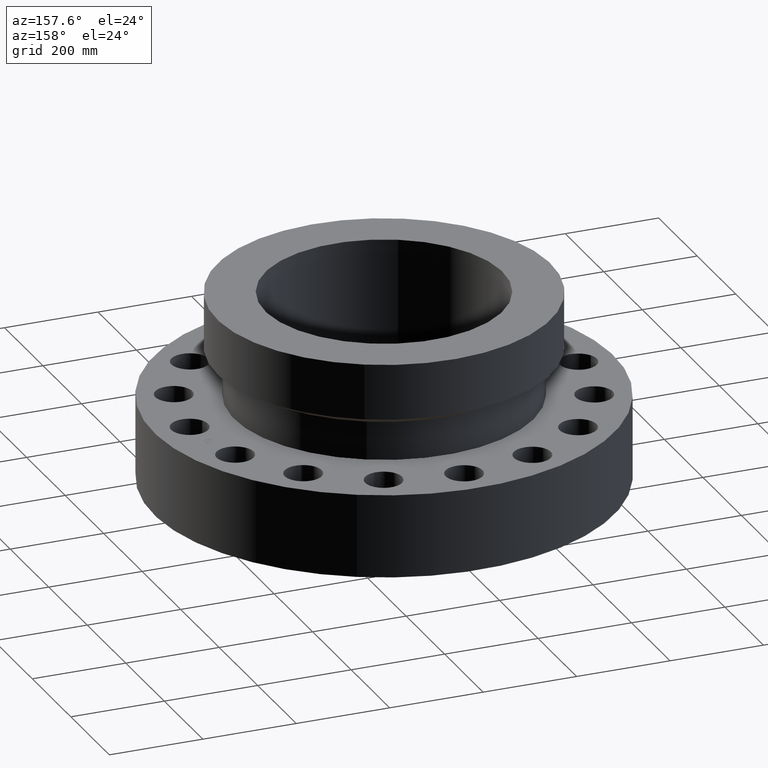
[diagram: clean part render]
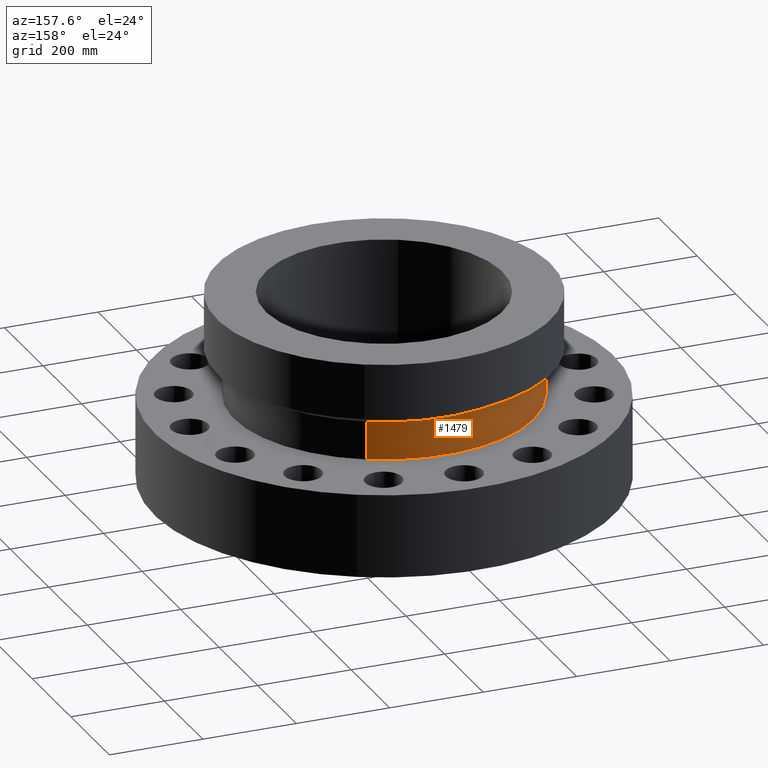
[diagram: same view with one face highlighted and labeled with its STEP entity id]
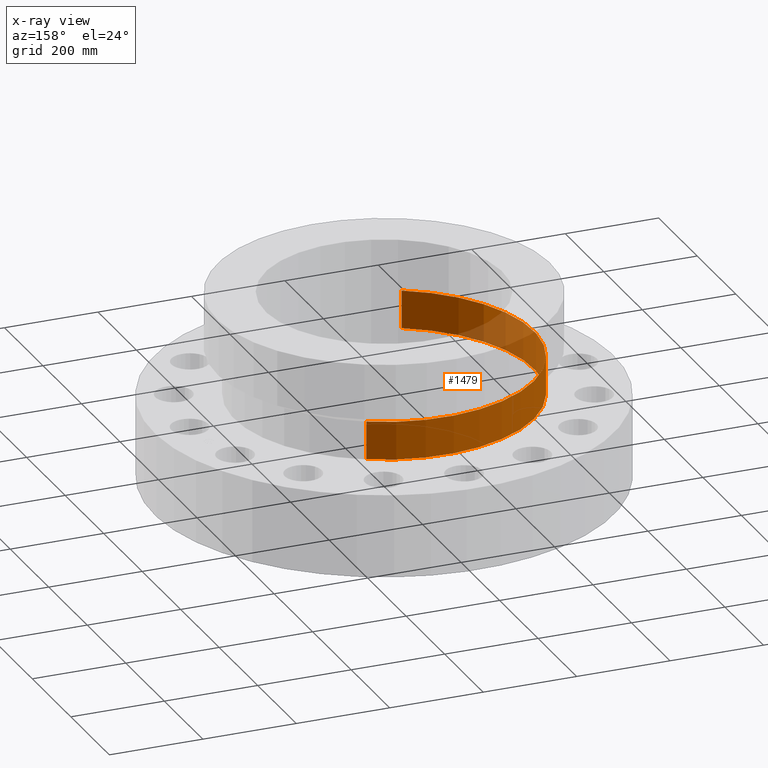
[diagram: x-ray of the same camera — body ghosted, the highlighted face saturated]
A machine part, auxiliary view. The second image highlights one B-rep face of the part: STEP entity #1479.
The next image is the same camera in x-ray: the body ghosted, the highlighted face saturated — about 19% of this face is hidden behind the body in this view.
In plain terms, the highlighted cylindrical surface (partial cylindrical patch) has radius 320.675 mm, axis along (0, 0, -1).
Its self-contained STEP definition (entity closure, byte-faithful):
#1248=AXIS2_PLACEMENT_3D('Circle Axis2P3D',#1246,#1247,$) ;
#1440=AXIS2_PLACEMENT_3D('Cylinder Axis2P3D',#1437,#1438,#1439) ;
#1470=AXIS2_PLACEMENT_3D('Circle Axis2P3D',#1468,#1469,$) ;
#1224=CARTESIAN_POINT('Vertex',(6.0527474249,11.0794798439,7.04098076214)) ;
#1231=CARTESIAN_POINT('Vertex',(-6.0527474249,-11.0794798439,7.04098076214)) ;
#1246=CARTESIAN_POINT('Axis2P3D Location',(0.,0.,7.04098076214)) ;
#1437=CARTESIAN_POINT('Axis2P3D Location',(0.,0.,7.75000000003)) ;
#1442=CARTESIAN_POINT('Line Origine',(6.0527474249,11.0794798439,8.64549038109)) ;
#1446=CARTESIAN_POINT('Vertex',(6.0527474249,11.0794798439,10.25)) ;
#1453=CARTESIAN_POINT('Vertex',(-6.0527474249,-11.0794798439,10.25)) ;
#1456=CARTESIAN_POINT('Line Origine',(-6.0527474249,-11.0794798439,8.64549038109)) ;
#1468=CARTESIAN_POINT('Axis2P3D Location',(0.,0.,10.25)) ;
#1247=DIRECTION('Axis2P3D Direction',(-0.,0.,0.0393700787402)) ;
#1438=DIRECTION('Axis2P3D Direction',(0.,0.,-0.0393700787402)) ;
#1439=DIRECTION('Axis2P3D XDirection',(-0.0188750212049,-0.0345504945626,0.)) ;
#1443=DIRECTION('Vector Direction',(0.,0.,-0.0393700787402)) ;
#1457=DIRECTION('Vector Direction',(0.,0.,-0.0393700787402)) ;
#1469=DIRECTION('Axis2P3D Direction',(0.,0.,-0.0393700787402)) ;
#1444=VECTOR('Line Direction',#1443,0.0393700787402) ;
#1458=VECTOR('Line Direction',#1457,0.0393700787402) ;
#1474=ORIENTED_EDGE('',*,*,#1250,.F.) ;
#1475=ORIENTED_EDGE('',*,*,#1460,.T.) ;
#1476=ORIENTED_EDGE('',*,*,#1472,.T.) ;
#1477=ORIENTED_EDGE('',*,*,#1448,.F.) ;
#1479=ADVANCED_FACE('PartBody',(#1478),#1441,.T.) ;
#1249=CIRCLE('generated circle',#1248,12.6250000001) ;
#1471=CIRCLE('generated circle',#1470,12.6250000001) ;
#1441=CYLINDRICAL_SURFACE('generated cylinder',#1440,12.6250000001) ;
#1250=EDGE_CURVE('',#1232,#1225,#1249,.F.) ;
#1448=EDGE_CURVE('',#1225,#1447,#1445,.F.) ;
#1460=EDGE_CURVE('',#1232,#1454,#1459,.F.) ;
#1472=EDGE_CURVE('',#1454,#1447,#1471,.T.) ;
#1473=EDGE_LOOP('',(#1474,#1475,#1476,#1477)) ;
#1478=FACE_OUTER_BOUND('',#1473,.T.) ;
#1445=LINE('Line',#1442,#1444) ;
#1459=LINE('Line',#1456,#1458) ;
#1225=VERTEX_POINT('',#1224) ;
#1232=VERTEX_POINT('',#1231) ;
#1447=VERTEX_POINT('',#1446) ;
#1454=VERTEX_POINT('',#1453) ;